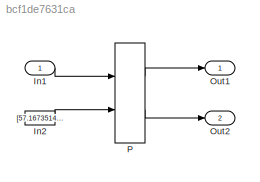
MODEL slx_bcf1de7631ca
KIND model
CONFIG AbsTol = auto
CONFIG EnableMultiTasking = off
CONFIG FixedStep = auto
CONFIG MaxStep = auto
CONFIG MinStep = auto
CONFIG RelTol = 1e-3
CONFIG SampleTimeConstraint = Unconstrained
CONFIG Solver = FixedStepDiscrete
CONFIG SolverName = FixedStepDiscrete
CONFIG StartTime = 0.0
CONFIG StopTime = 10.0
BLOCK [Inport] In1
  IconDisplay = Port number
  OutDataTypeStr = int16
  PortDimensions = [2,3]
BLOCK [Constant] In2
  Value = [57.1673514184159 58.6673514184159 60.1673514184159 61.6673514184159 63.1673514184159 64.6673514184159 66.1673514184159 67.6673514184159 69.1673514184159 70.6673514184159 72.1673514184159 73.6673514184159 75.1673514184159 76.6673514184159 78.1673514184159 79.6673514184159]
BLOCK [Outport] Out1
  IconDisplay = Port number
BLOCK [Outport] Out2
  IconDisplay = Port number
  Port = 2
BLOCK [PreLookup] P
  BeginIndexSearchUsingPreviousIndexResult = on
  BreakpointDataTypeStr = int8
  BreakpointsData = [10:10:110]
  BreakpointsDataSource = Input port
  FractionDataTypeStr = double
  IndexDataTypeStr = int8
  InputPortMap = u0,p1
  Ports = [2, 2]
  RndMeth = Nearest
LINE In1:1 -> P:1
LINE In2:1 -> P:2
LINE P:1 -> Out1:1
LINE P:2 -> Out2:1
